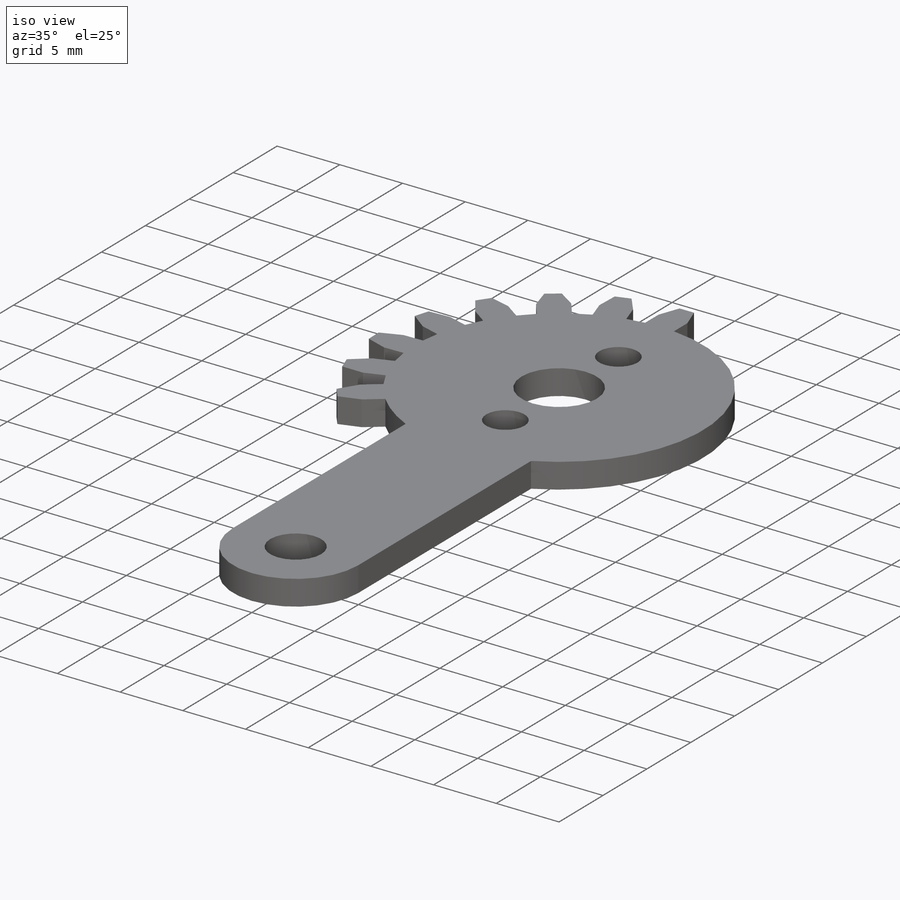
[diagram: iso view]
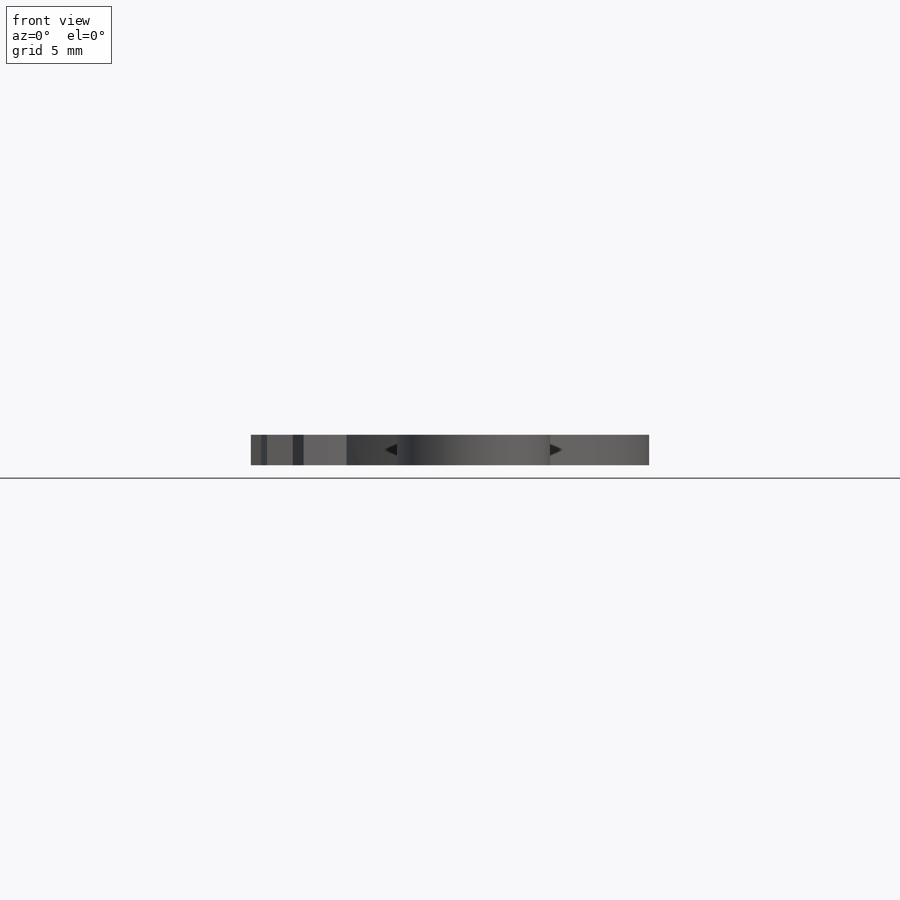
[diagram: front view]
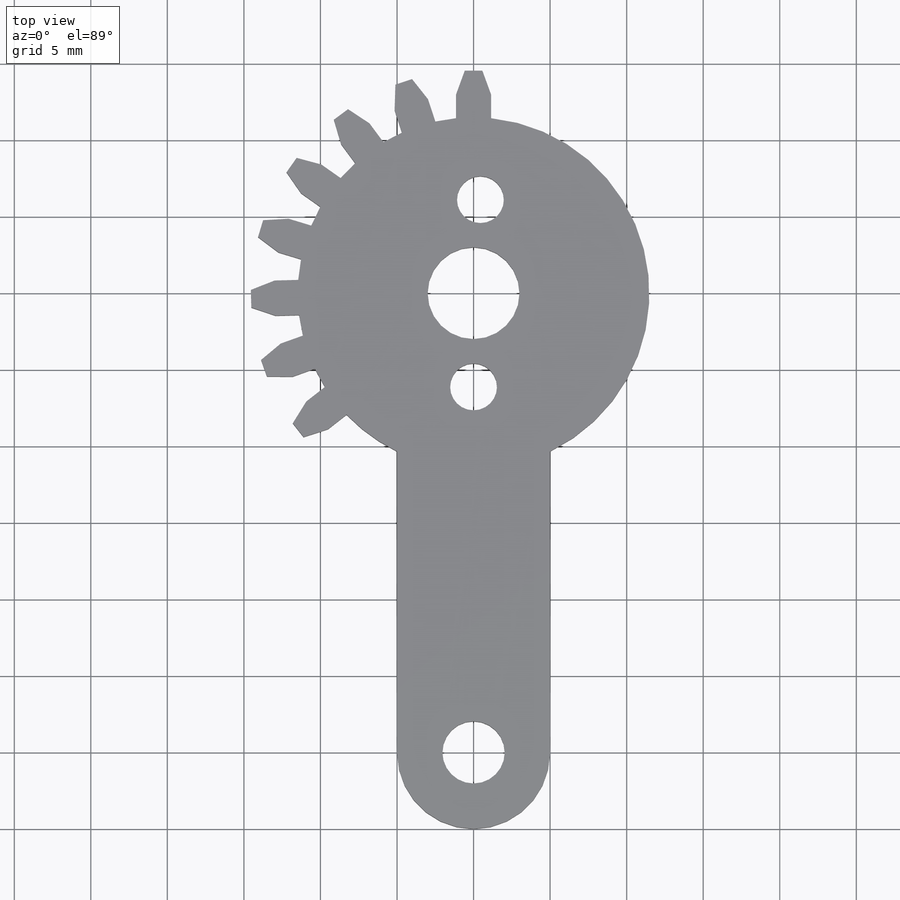
[diagram: top view]
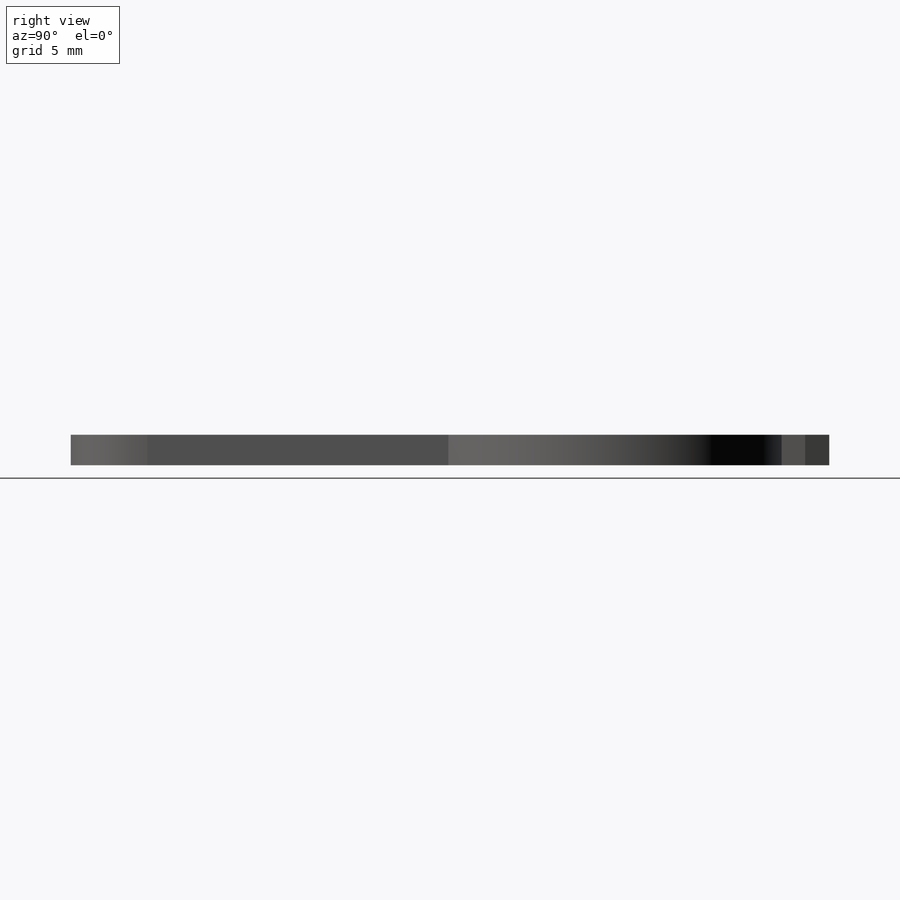
[diagram: right view]
SOLIDWORKS PART (.sldprt)
format: sldprt  version: not decoded by parser v0  size: 231,424 bytes
history: native  units: mm
features: plane x3, sketch x3, extrude x2, material x1, pattern_circular x1, cut_extrude x1 (+8 scaffold rows collapsed)
feature tree (19):
  scaffold x8  (default folders/planes/origin — collapsed)
  material  "Material <sin especificar>"
  plane  "Alzado"
  plane  "Planta"
  plane  "Vista lateral"
  sketch  "Croquis1"  dims[c1.D1=23.8mm c1.D3=10.0mm c1.D2=10.0mm c1.D4=25.4mm c2.D1=11.9mm c2.D4=6.0mm c3.D1=22.97mm c3.D2=10.0mm c3.D3=45.0mm c3.D5=~12.264146mm c4.D5=~102.420416deg c4.D6=0.235mm c4.D7=0.1175mm c4.D3=30.0mm]
  extrude  "Saliente-Extruir1"  Depth=3mm
  sketch  "Croquis3"  dims[c1.D1=26.0mm c1.D2=~1.148438mm c1.D3=~2.296875mm c1.D4=~12.032261mm c2.D4=90.0deg c3.D4=11.9mm c4.D4=90.0deg c4.D1=3.0625mm]
  extrude  "Saliente-Extruir2"  [1 undecoded]
  pattern_circular  "MatrizC1"  Count=8 Angle=128deg
  sketch  "Croquis4"  dims[D1=3.06mm D2=12.25mm]
  cut_extrude  "Cortar-Extruir1"  Depth=10mm
decode coverage: 6 of 7 modeling features carry decoded parameters
note: ~ marks probable driven/reference dimensions
note: 1 parameter value undecoded
note: suppression state not decoded; provenance and decode notes live in map.json
